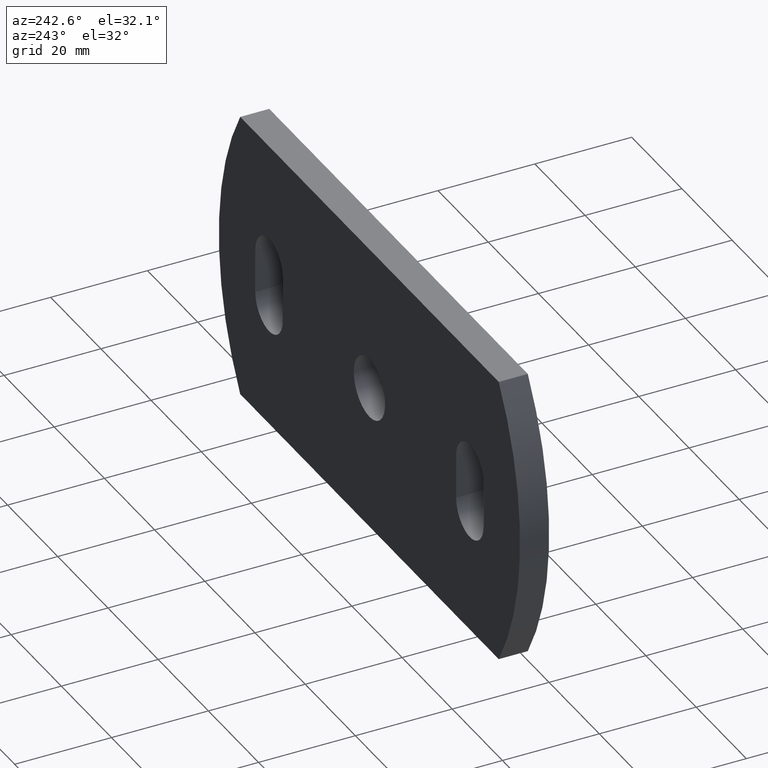
[diagram: clean part render]
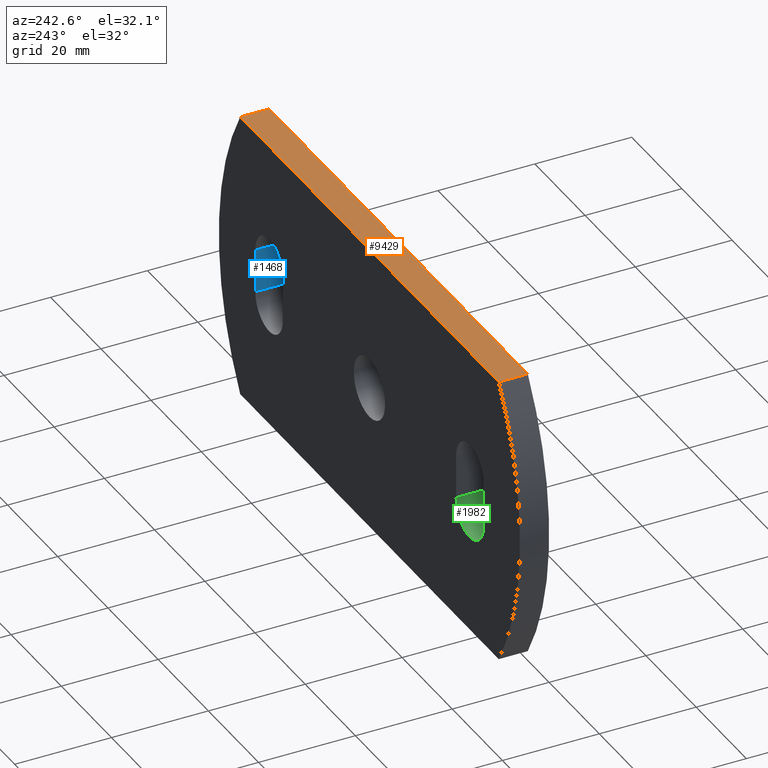
[diagram: same view with three faces highlighted in distinct colors, each labeled with its STEP entity id]
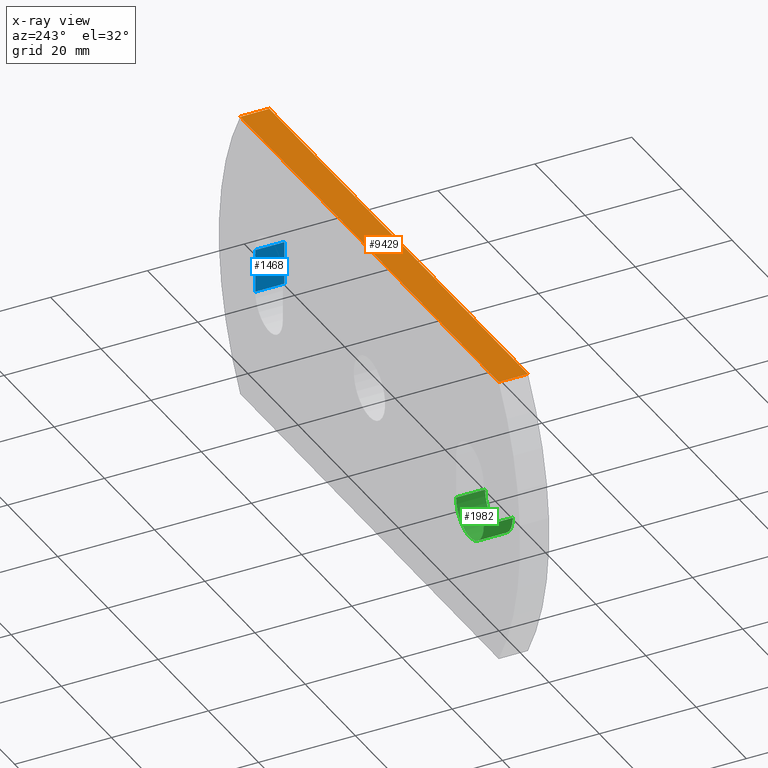
[diagram: x-ray of the same camera — body ghosted, the three highlighted faces saturated]
A machine part, auxiliary view with three faces highlighted in distinct colors.
The next image is the same camera in x-ray (body ghosted, the three faces saturated) — at least one of them is partly hidden behind the body in this view.
Their STEP definitions:

[orange] entity #9429 — the highlighted planar face has unit normal (0, 0, -1).
#63 = PLANE ( 'NONE',  #6462 ) ;
#99 = DIRECTION ( 'NONE',  ( 3.368395098984091700E-016, 0.0000000000000000000, -1.000000000000000000 ) ) ;
#448 = CARTESIAN_POINT ( 'NONE',  ( -51.49999999999997200, 6.000000000000000000, 29.99999999999998200 ) ) ;
#746 = CARTESIAN_POINT ( 'NONE',  ( 51.50000000000002800, 6.000000000000000000, 30.00000000000001800 ) ) ;
#1186 = VERTEX_POINT ( 'NONE', #3358 ) ;
#1403 = EDGE_CURVE ( 'NONE', #6682, #1972, #8543, .T. ) ;
#1972 = VERTEX_POINT ( 'NONE', #2983 ) ;
#2249 = DIRECTION ( 'NONE',  ( -1.000000000000000000, 0.0000000000000000000, -3.368395098984091700E-016 ) ) ;
#2365 = LINE ( 'NONE', #6786, #5651 ) ;
#2454 = ORIENTED_EDGE ( 'NONE', *, *, #8798, .T. ) ;
#2486 = ORIENTED_EDGE ( 'NONE', *, *, #5616, .T. ) ;
#2854 = EDGE_LOOP ( 'NONE', ( #2486, #7409, #4113, #2454 ) ) ;
#2873 = CARTESIAN_POINT ( 'NONE',  ( -51.49999999999997200, 6.000000000000000000, 29.99999999999998200 ) ) ;
#2983 = CARTESIAN_POINT ( 'NONE',  ( 51.50000000000002800, 0.0000000000000000000, 30.00000000000001800 ) ) ;
#3112 = VERTEX_POINT ( 'NONE', #2873 ) ;
#3356 = VECTOR ( 'NONE', #8710, 1000.000000000000000 ) ;
#3358 = CARTESIAN_POINT ( 'NONE',  ( -51.49999999999997200, 0.0000000000000000000, 29.99999999999998200 ) ) ;
#3435 = CARTESIAN_POINT ( 'NONE',  ( 51.50000000000002800, 6.000000000000000000, 30.00000000000001800 ) ) ;
#3873 = VECTOR ( 'NONE', #6291, 1000.000000000000000 ) ;
#4113 = ORIENTED_EDGE ( 'NONE', *, *, #6430, .F. ) ;
#4237 = CARTESIAN_POINT ( 'NONE',  ( -51.49999999999997200, 6.000000000000000000, 29.99999999999998200 ) ) ;
#5616 = EDGE_CURVE ( 'NONE', #1186, #1972, #2365, .T. ) ;
#5651 = VECTOR ( 'NONE', #6062, 1000.000000000000000 ) ;
#6011 = CARTESIAN_POINT ( 'NONE',  ( -51.49999999999997200, 6.000000000000000000, 29.99999999999998200 ) ) ;
#6062 = DIRECTION ( 'NONE',  ( 1.000000000000000000, 0.0000000000000000000, 3.368395098984091700E-016 ) ) ;
#6207 = LINE ( 'NONE', #4237, #3356 ) ;
#6291 = DIRECTION ( 'NONE',  ( -0.0000000000000000000, -1.000000000000000000, -0.0000000000000000000 ) ) ;
#6346 = VECTOR ( 'NONE', #9206, 1000.000000000000000 ) ;
#6430 = EDGE_CURVE ( 'NONE', #3112, #6682, #6683, .T. ) ;
#6462 = AXIS2_PLACEMENT_3D ( 'NONE', #6011, #99, #2249 ) ;
#6682 = VERTEX_POINT ( 'NONE', #746 ) ;
#6683 = LINE ( 'NONE', #448, #6346 ) ;
#6786 = CARTESIAN_POINT ( 'NONE',  ( -51.49999999999997200, 0.0000000000000000000, 29.99999999999998200 ) ) ;
#7355 = FACE_OUTER_BOUND ( 'NONE', #2854, .T. ) ;
#7409 = ORIENTED_EDGE ( 'NONE', *, *, #1403, .F. ) ;
#8543 = LINE ( 'NONE', #3435, #3873 ) ;
#8710 = DIRECTION ( 'NONE',  ( -0.0000000000000000000, -1.000000000000000000, -0.0000000000000000000 ) ) ;
#8798 = EDGE_CURVE ( 'NONE', #3112, #1186, #6207, .T. ) ;
#9206 = DIRECTION ( 'NONE',  ( 1.000000000000000000, 0.0000000000000000000, 3.368395098984091700E-016 ) ) ;
#9429 = ADVANCED_FACE ( 'NONE', ( #7355 ), #63, .F. ) ;

[blue] entity #1468 — the highlighted planar face has unit normal (1, 0, -0).
#562 = EDGE_CURVE ( 'NONE', #3793, #8861, #3351, .T. ) ;
#665 = AXIS2_PLACEMENT_3D ( 'NONE', #7900, #5040, #8724 ) ;
#1423 = VERTEX_POINT ( 'NONE', #9307 ) ;
#1468 = ADVANCED_FACE ( 'NONE', ( #2016 ), #2794, .F. ) ;
#1711 = CARTESIAN_POINT ( 'NONE',  ( 45.50000000000000000, 6.000000000000000000, 4.500000000000007100 ) ) ;
#2016 = FACE_OUTER_BOUND ( 'NONE', #4294, .T. ) ;
#2631 = CARTESIAN_POINT ( 'NONE',  ( 45.50000000000000000, 0.0000000000000000000, -4.500000000000007100 ) ) ;
#2794 = PLANE ( 'NONE',  #665 ) ;
#3182 = VECTOR ( 'NONE', #9444, 1000.000000000000000 ) ;
#3351 = LINE ( 'NONE', #8725, #8962 ) ;
#3408 = LINE ( 'NONE', #6314, #6041 ) ;
#3505 = DIRECTION ( 'NONE',  ( -0.0000000000000000000, -0.0000000000000000000, -1.000000000000000000 ) ) ;
#3781 = ORIENTED_EDGE ( 'NONE', *, *, #4060, .F. ) ;
#3793 = VERTEX_POINT ( 'NONE', #1711 ) ;
#3937 = ORIENTED_EDGE ( 'NONE', *, *, #562, .T. ) ;
#4060 = EDGE_CURVE ( 'NONE', #8280, #8861, #4207, .T. ) ;
#4207 = LINE ( 'NONE', #4330, #3182 ) ;
#4294 = EDGE_LOOP ( 'NONE', ( #3937, #3781, #8975, #8404 ) ) ;
#4330 = CARTESIAN_POINT ( 'NONE',  ( 45.50000000000000000, 0.0000000000000000000, -4.500000000000007100 ) ) ;
#4398 = EDGE_CURVE ( 'NONE', #1423, #3793, #3408, .T. ) ;
#4515 = LINE ( 'NONE', #7943, #6808 ) ;
#5040 = DIRECTION ( 'NONE',  ( 1.000000000000000000, 0.0000000000000000000, -0.0000000000000000000 ) ) ;
#6041 = VECTOR ( 'NONE', #9339, 1000.000000000000000 ) ;
#6314 = CARTESIAN_POINT ( 'NONE',  ( 45.50000000000000000, 0.0000000000000000000, 4.500000000000007100 ) ) ;
#6808 = VECTOR ( 'NONE', #3505, 1000.000000000000000 ) ;
#7106 = EDGE_CURVE ( 'NONE', #1423, #8280, #4515, .T. ) ;
#7900 = CARTESIAN_POINT ( 'NONE',  ( 45.50000000000000000, 0.0000000000000000000, -4.500000000000007100 ) ) ;
#7943 = CARTESIAN_POINT ( 'NONE',  ( 45.50000000000000000, 0.0000000000000000000, -4.500000000000007100 ) ) ;
#8028 = CARTESIAN_POINT ( 'NONE',  ( 45.50000000000000000, 6.000000000000000000, -4.500000000000007100 ) ) ;
#8280 = VERTEX_POINT ( 'NONE', #2631 ) ;
#8404 = ORIENTED_EDGE ( 'NONE', *, *, #4398, .T. ) ;
#8724 = DIRECTION ( 'NONE',  ( -0.0000000000000000000, 0.0000000000000000000, -1.000000000000000000 ) ) ;
#8725 = CARTESIAN_POINT ( 'NONE',  ( 45.50000000000000000, 6.000000000000000000, -4.500000000000007100 ) ) ;
#8861 = VERTEX_POINT ( 'NONE', #8028 ) ;
#8962 = VECTOR ( 'NONE', #9380, 1000.000000000000000 ) ;
#8975 = ORIENTED_EDGE ( 'NONE', *, *, #7106, .F. ) ;
#9307 = CARTESIAN_POINT ( 'NONE',  ( 45.50000000000000000, 0.0000000000000000000, 4.500000000000007100 ) ) ;
#9339 = DIRECTION ( 'NONE',  ( -0.0000000000000000000, 1.000000000000000000, -0.0000000000000000000 ) ) ;
#9380 = DIRECTION ( 'NONE',  ( -0.0000000000000000000, -0.0000000000000000000, -1.000000000000000000 ) ) ;
#9444 = DIRECTION ( 'NONE',  ( -0.0000000000000000000, 1.000000000000000000, -0.0000000000000000000 ) ) ;

[green] entity #1982 — the highlighted cylindrical surface (edge-blend (fillet) strip) has radius 5.5 mm, axis along (-0, 1, -0).
#69 = AXIS2_PLACEMENT_3D ( 'NONE', #8588, #9305, #7870 ) ;
#294 = VERTEX_POINT ( 'NONE', #8967 ) ;
#531 = LINE ( 'NONE', #6398, #6495 ) ;
#1242 = CARTESIAN_POINT ( 'NONE',  ( -45.50000000000000000, 0.0000000000000000000, -4.499999999999992900 ) ) ;
#1471 = CARTESIAN_POINT ( 'NONE',  ( -34.50000000000000000, 0.0000000000000000000, -4.499999999999991100 ) ) ;
#1633 = DIRECTION ( 'NONE',  ( -0.0000000000000000000, 1.000000000000000000, -0.0000000000000000000 ) ) ;
#1772 = VERTEX_POINT ( 'NONE', #2036 ) ;
#1982 = ADVANCED_FACE ( 'NONE', ( #6656 ), #6775, .F. ) ;
#2036 = CARTESIAN_POINT ( 'NONE',  ( -34.50000000000000000, 6.000000000000000000, -4.499999999999991100 ) ) ;
#2053 = ORIENTED_EDGE ( 'NONE', *, *, #4374, .F. ) ;
#2417 = CARTESIAN_POINT ( 'NONE',  ( -34.50000000000000000, 0.0000000000000000000, -4.499999999999991100 ) ) ;
#2970 = EDGE_CURVE ( 'NONE', #5765, #294, #531, .T. ) ;
#3145 = ORIENTED_EDGE ( 'NONE', *, *, #5988, .T. ) ;
#3376 = AXIS2_PLACEMENT_3D ( 'NONE', #5086, #1633, #5216 ) ;
#3957 = VECTOR ( 'NONE', #5179, 1000.000000000000000 ) ;
#4374 = EDGE_CURVE ( 'NONE', #8964, #5765, #5210, .T. ) ;
#5086 = CARTESIAN_POINT ( 'NONE',  ( -40.00000000000000000, 0.0000000000000000000, -4.500000000000007100 ) ) ;
#5179 = DIRECTION ( 'NONE',  ( -0.0000000000000000000, 1.000000000000000000, -0.0000000000000000000 ) ) ;
#5210 = CIRCLE ( 'NONE', #69, 5.499999999999998200 ) ;
#5216 = DIRECTION ( 'NONE',  ( 0.0000000000000000000, 0.0000000000000000000, 1.000000000000000000 ) ) ;
#5484 = DIRECTION ( 'NONE',  ( 0.0000000000000000000, 1.000000000000000000, 0.0000000000000000000 ) ) ;
#5612 = DIRECTION ( 'NONE',  ( -0.0000000000000000000, 1.000000000000000000, -0.0000000000000000000 ) ) ;
#5765 = VERTEX_POINT ( 'NONE', #1242 ) ;
#5895 = LINE ( 'NONE', #1471, #3957 ) ;
#5988 = EDGE_CURVE ( 'NONE', #8964, #1772, #5895, .T. ) ;
#6215 = EDGE_CURVE ( 'NONE', #1772, #294, #6911, .T. ) ;
#6237 = DIRECTION ( 'NONE',  ( 0.0000000000000000000, 0.0000000000000000000, 1.000000000000000000 ) ) ;
#6398 = CARTESIAN_POINT ( 'NONE',  ( -45.50000000000000000, 0.0000000000000000000, -4.499999999999992900 ) ) ;
#6495 = VECTOR ( 'NONE', #5612, 1000.000000000000000 ) ;
#6516 = ORIENTED_EDGE ( 'NONE', *, *, #6215, .T. ) ;
#6656 = FACE_OUTER_BOUND ( 'NONE', #7134, .T. ) ;
#6775 = CYLINDRICAL_SURFACE ( 'NONE', #3376, 5.499999999999998200 ) ;
#6907 = CARTESIAN_POINT ( 'NONE',  ( -40.00000000000000000, 6.000000000000000000, -4.500000000000007100 ) ) ;
#6911 = CIRCLE ( 'NONE', #9152, 5.499999999999998200 ) ;
#7134 = EDGE_LOOP ( 'NONE', ( #6516, #8687, #2053, #3145 ) ) ;
#7870 = DIRECTION ( 'NONE',  ( 0.0000000000000000000, 0.0000000000000000000, 1.000000000000000000 ) ) ;
#8588 = CARTESIAN_POINT ( 'NONE',  ( -40.00000000000000000, 0.0000000000000000000, -4.500000000000007100 ) ) ;
#8687 = ORIENTED_EDGE ( 'NONE', *, *, #2970, .F. ) ;
#8964 = VERTEX_POINT ( 'NONE', #2417 ) ;
#8967 = CARTESIAN_POINT ( 'NONE',  ( -45.50000000000000000, 6.000000000000000000, -4.499999999999992900 ) ) ;
#9152 = AXIS2_PLACEMENT_3D ( 'NONE', #6907, #5484, #6237 ) ;
#9305 = DIRECTION ( 'NONE',  ( 0.0000000000000000000, 1.000000000000000000, 0.0000000000000000000 ) ) ;